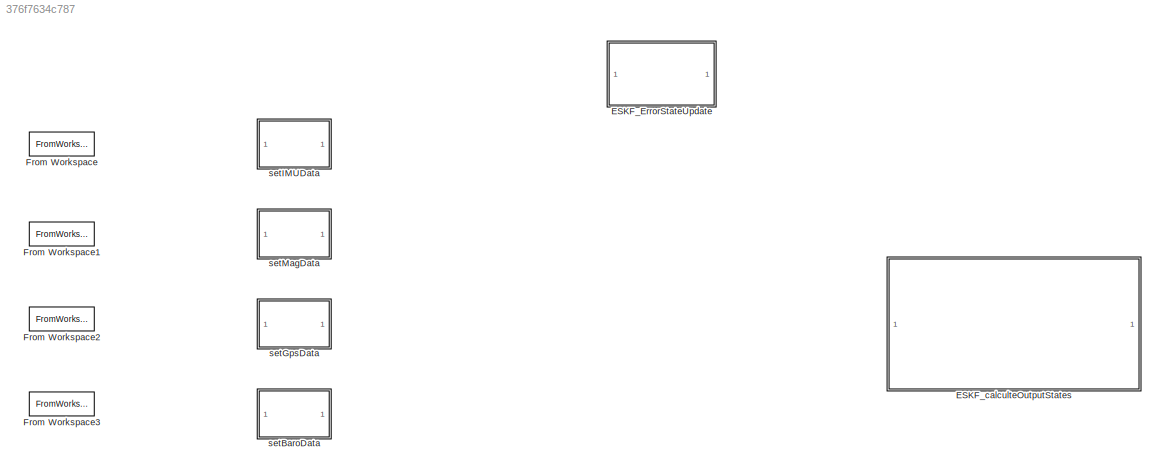
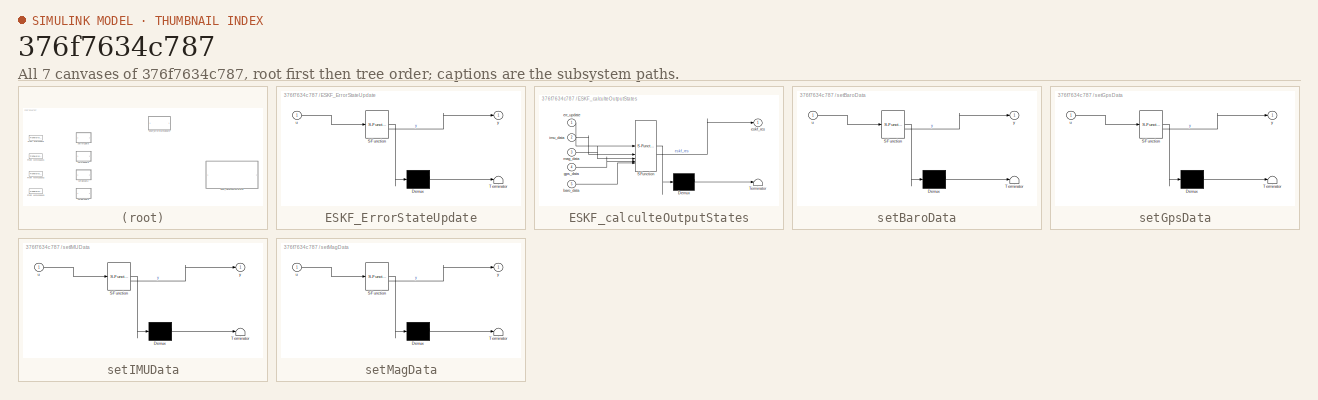
[diagram: thumbnail index - all 7 canvases of the model, root first then tree order]
MODEL slx_376f7634c787
KIND model
CONFIG AbsTol = auto
CONFIG EnableMultiTasking = off
CONFIG FixedStep = auto
CONFIG MaxStep = auto
CONFIG MinStep = auto
CONFIG RelTol = 1e-3
CONFIG SampleTimeConstraint = Unconstrained
CONFIG SolverName = VariableStepAuto
CONFIG StartTime = 0.0
CONFIG StopTime = 10.0
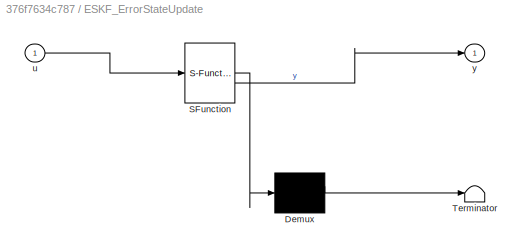
BLOCK [SubSystem] ESKF_ErrorStateUpdate
  ErrorFcn = Stateflow.Translate.translate
  LibrarySourceBlock = simulink/User-Defined\nFunctions/MATLAB Function
  PermitHierarchicalResolution = ExplicitOnly
  SFBlockType = MATLAB Function
  TreatAsAtomicUnit = on
BLOCK [Demux] ESKF_ErrorStateUpdate/ Demux 
  Outputs = 1
BLOCK [S-Function] ESKF_ErrorStateUpdate/ SFunction 
  EnableBusSupport = off
  FunctionName = sf_sfun
  PortCounts = [1 2]
  SFcnIsStateOwnerBlock = off
  SFunctionDeploymentMode = off
  Tag = Stateflow S-Function 6
BLOCK [Terminator] ESKF_ErrorStateUpdate/ Terminator 
BLOCK [Inport] ESKF_ErrorStateUpdate/u
BLOCK [Outport] ESKF_ErrorStateUpdate/y
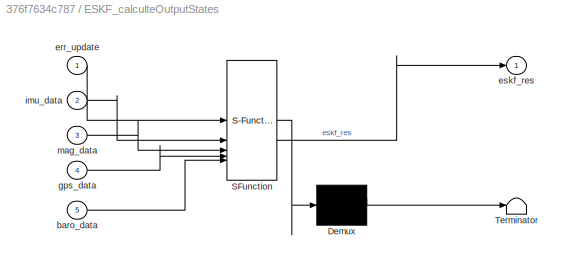
BLOCK [SubSystem] ESKF_calculteOutputStates
  ErrorFcn = Stateflow.Translate.translate
  LibrarySourceBlock = simulink/User-Defined\nFunctions/MATLAB Function
  PermitHierarchicalResolution = ExplicitOnly
  SFBlockType = MATLAB Function
  TreatAsAtomicUnit = on
BLOCK [Demux] ESKF_calculteOutputStates/ Demux 
  Outputs = 1
BLOCK [S-Function] ESKF_calculteOutputStates/ SFunction 
  EnableBusSupport = off
  FunctionName = sf_sfun
  PortCounts = [5 2]
  SFcnIsStateOwnerBlock = off
  SFunctionDeploymentMode = off
  Tag = Stateflow S-Function 2
BLOCK [Terminator] ESKF_calculteOutputStates/ Terminator 
BLOCK [Inport] ESKF_calculteOutputStates/baro_data
  Port = 5
BLOCK [Inport] ESKF_calculteOutputStates/err_update
BLOCK [Outport] ESKF_calculteOutputStates/eskf_res
BLOCK [Inport] ESKF_calculteOutputStates/gps_data
  Port = 4
BLOCK [Inport] ESKF_calculteOutputStates/imu_data
  Port = 2
BLOCK [Inport] ESKF_calculteOutputStates/mag_data
  Port = 3
BLOCK [FromWorkspace] From Workspace
  VariableName = imuData
BLOCK [FromWorkspace] From Workspace1
  VariableName = magData
BLOCK [FromWorkspace] From Workspace2
  VariableName = gpsData
BLOCK [FromWorkspace] From Workspace3
  VariableName = baroData
BLOCK [SubSystem] setBaroData
  ErrorFcn = Stateflow.Translate.translate
  LibrarySourceBlock = simulink/User-Defined\nFunctions/MATLAB Function
  PermitHierarchicalResolution = ExplicitOnly
  SFBlockType = MATLAB Function
  TreatAsAtomicUnit = on
BLOCK [Demux] setBaroData/ Demux 
  Outputs = 1
BLOCK [S-Function] setBaroData/ SFunction 
  EnableBusSupport = off
  FunctionName = sf_sfun
  PortCounts = [1 2]
  SFcnIsStateOwnerBlock = off
  SFunctionDeploymentMode = off
  Tag = Stateflow S-Function 5
BLOCK [Terminator] setBaroData/ Terminator 
BLOCK [Inport] setBaroData/u
BLOCK [Outport] setBaroData/y
BLOCK [SubSystem] setGpsData
  ErrorFcn = Stateflow.Translate.translate
  LibrarySourceBlock = simulink/User-Defined\nFunctions/MATLAB Function
  PermitHierarchicalResolution = ExplicitOnly
  SFBlockType = MATLAB Function
  TreatAsAtomicUnit = on
BLOCK [Demux] setGpsData/ Demux 
  Outputs = 1
BLOCK [S-Function] setGpsData/ SFunction 
  EnableBusSupport = off
  FunctionName = sf_sfun
  PortCounts = [1 2]
  SFcnIsStateOwnerBlock = off
  SFunctionDeploymentMode = off
  Tag = Stateflow S-Function 4
BLOCK [Terminator] setGpsData/ Terminator 
BLOCK [Inport] setGpsData/u
BLOCK [Outport] setGpsData/y
BLOCK [SubSystem] setIMUData
  ErrorFcn = Stateflow.Translate.translate
  LibrarySourceBlock = simulink/User-Defined\nFunctions/MATLAB Function
  PermitHierarchicalResolution = ExplicitOnly
  SFBlockType = MATLAB Function
  TreatAsAtomicUnit = on
BLOCK [Demux] setIMUData/ Demux 
  Outputs = 1
BLOCK [S-Function] setIMUData/ SFunction 
  EnableBusSupport = off
  FunctionName = sf_sfun
  PortCounts = [1 2]
  SFcnIsStateOwnerBlock = off
  SFunctionDeploymentMode = off
  Tag = Stateflow S-Function 1
BLOCK [Terminator] setIMUData/ Terminator 
BLOCK [Inport] setIMUData/u
BLOCK [Outport] setIMUData/y
BLOCK [SubSystem] setMagData
  ErrorFcn = Stateflow.Translate.translate
  LibrarySourceBlock = simulink/User-Defined\nFunctions/MATLAB Function
  PermitHierarchicalResolution = ExplicitOnly
  SFBlockType = MATLAB Function
  TreatAsAtomicUnit = on
BLOCK [Demux] setMagData/ Demux 
  Outputs = 1
BLOCK [S-Function] setMagData/ SFunction 
  EnableBusSupport = off
  FunctionName = sf_sfun
  PortCounts = [1 2]
  SFcnIsStateOwnerBlock = off
  SFunctionDeploymentMode = off
  Tag = Stateflow S-Function 3
BLOCK [Terminator] setMagData/ Terminator 
BLOCK [Inport] setMagData/u
BLOCK [Outport] setMagData/y
CHART setIMUData states=1 transitions=1
  STATE_LABEL 'eML_blk_kernel()'
  STATE_LABEL 'SCRIPT:\nfunction y = fcn(u)\n\ny = u;\n'
CHART ESKF_calculteOutputStates states=1 transitions=1
  STATE_LABEL 'eML_blk_kernel()'
  STATE_LABEL 'SCRIPT:\nfunction eskf_res = calculteOutputStates(err_update,imu_data,mag_data,gps_data,baro_data)\n\n\n\n\neskf_res = u;\n'
CHART setMagData states=1 transitions=1
  STATE_LABEL 'eML_blk_kernel()'
  STATE_LABEL 'SCRIPT:\nfunction y = fcn(u)\n\ny = u;\n'
CHART setGpsData states=1 transitions=1
  STATE_LABEL 'eML_blk_kernel()'
  STATE_LABEL 'SCRIPT:\nfunction y = fcn(u)\n\ny = u;\n'
CHART setBaroData states=1 transitions=1
  STATE_LABEL 'eML_blk_kernel()'
  STATE_LABEL 'SCRIPT:\nfunction y = fcn(u)\n\ny = u;\n'
CHART ESKF_ErrorStateUpdate states=1 transitions=1
  STATE_LABEL 'eML_blk_kernel()'
  STATE_LABEL 'SCRIPT:\nfunction y = fcn(u)\n\ny = u;\n'
CHART  states=0 transitions=0
CHART  states=0 transitions=0
CHART  states=0 transitions=0
CHART  states=0 transitions=0
CHART  states=0 transitions=0
CHART  states=0 transitions=0
